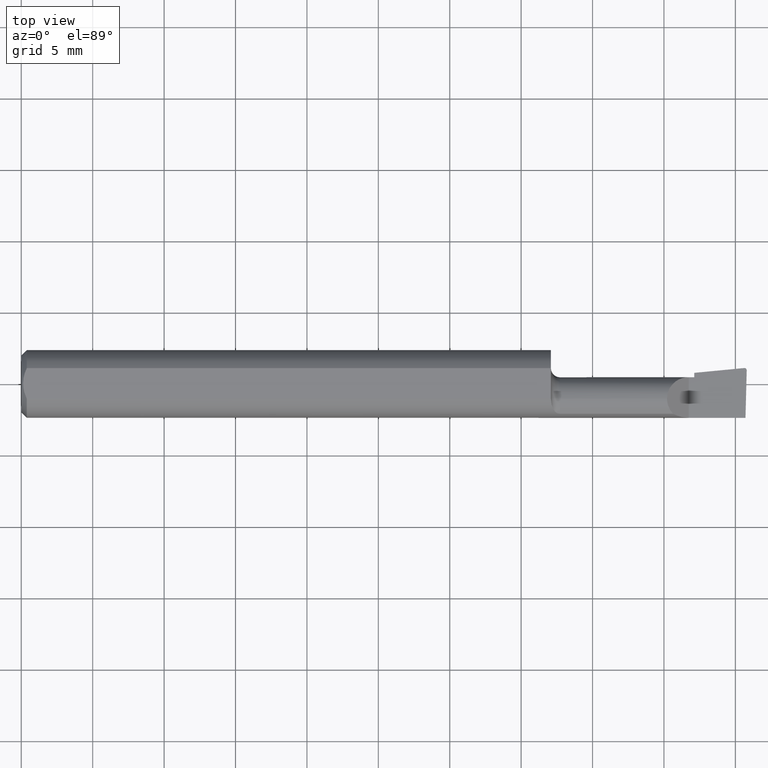
[diagram: clean part render]
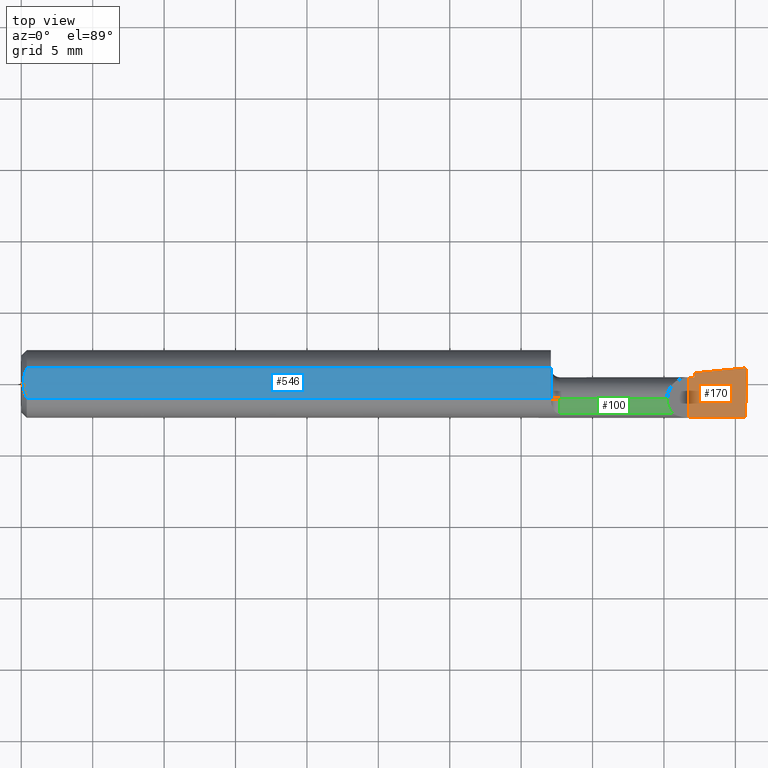
[diagram: same view with three faces highlighted in distinct colors, each labeled with its STEP entity id]
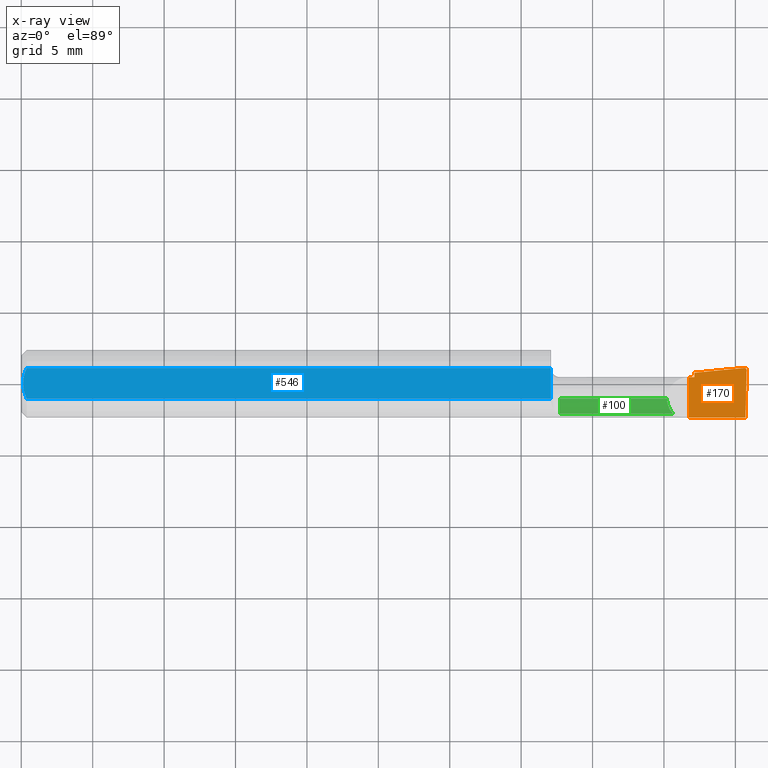
[diagram: x-ray of the same camera — body ghosted, the three highlighted faces saturated]
A machine part, top view with three faces highlighted in distinct colors.
The next image is the same camera in x-ray (body ghosted, the three faces saturated) — at least one of them is partly hidden behind the body in this view.
Their STEP definitions:

[orange] entity #170 — the highlighted planar face has unit normal (-0, 0, -1).
#13 = EDGE_CURVE ( 'NONE', #182, #440, #228, .T. ) ;
#19 = CARTESIAN_POINT ( 'NONE',  ( 5.659797890829555466E-31, -0.09359999999999998876, 1.030335658007946046E-15 ) ) ;
#26 = ORIENTED_EDGE ( 'NONE', *, *, #412, .T. ) ;
#30 = VECTOR ( 'NONE', #584, 39.37007874015748854 ) ;
#45 = CARTESIAN_POINT ( 'NONE',  ( 1.854999999999999982, -0.2500000000000000555, 1.135460985248596835E-17 ) ) ;
#54 = VERTEX_POINT ( 'NONE', #675 ) ;
#58 = CARTESIAN_POINT ( 'NONE',  ( 1.993310817358676212, 0.04374616680637213179, -6.832789351565719796E-17 ) ) ;
#68 = ORIENTED_EDGE ( 'NONE', *, *, #155, .F. ) ;
#70 = DIRECTION ( 'NONE',  ( -5.493159289247764363E-16, 0.0000000000000000000, -1.000000000000000000 ) ) ;
#72 = DIRECTION ( 'NONE',  ( 0.9953961983671787417, 0.09584575252022466130, -5.467869873542577569E-16 ) ) ;
#140 = CARTESIAN_POINT ( 'NONE',  ( 1.999806390372779408, 0.03700634663142104291, -6.825079363098308080E-17 ) ) ;
#155 = EDGE_CURVE ( 'NONE', #440, #277, #707, .T. ) ;
#159 =( BOUNDED_CURVE ( )  B_SPLINE_CURVE ( 3, ( #353, #58, #176, #165 ),
 .UNSPECIFIED., .F., .T. ) 
 B_SPLINE_CURVE_WITH_KNOTS ( ( 4, 4 ),
 ( 3.511516179717707686, 3.604018710826265792 ),
 .UNSPECIFIED. ) 
 CURVE ( )  GEOMETRIC_REPRESENTATION_ITEM ( )  RATIONAL_B_SPLINE_CURVE ( ( 1.000000000000000000, 0.9992870672494014173, 0.9992870672494014173, 1.000000000000000000 ) ) 
 REPRESENTATION_ITEM ( '' )  );
#165 = CARTESIAN_POINT ( 'NONE',  ( 1.992906680581892465, 0.04371699102466924253, -6.439972649628884200E-17 ) ) ;
#170 = ADVANCED_FACE ( 'NONE', ( #403 ), #555, .F. ) ;
#176 = CARTESIAN_POINT ( 'NONE',  ( 1.993108609909222784, 0.04373643460740115479, -6.821681774272507613E-17 ) ) ;
#182 = VERTEX_POINT ( 'NONE', #441 ) ;
#202 =( BOUNDED_CURVE ( )  B_SPLINE_CURVE ( 3, ( #350, #244, #610, #279 ),
 .UNSPECIFIED., .F., .T. ) 
 B_SPLINE_CURVE_WITH_KNOTS ( ( 4, 4 ),
 ( 1.953092279228458406, 3.511516179717707686 ),
 .UNSPECIFIED. ) 
 CURVE ( )  GEOMETRIC_REPRESENTATION_ITEM ( )  RATIONAL_B_SPLINE_CURVE ( ( 1.000000000000000000, 0.8076450242550430314, 0.8076450242550430314, 1.000000000000000000 ) ) 
 REPRESENTATION_ITEM ( '' )  );
#213 = EDGE_LOOP ( 'NONE', ( #26, #454, #380, #559, #514, #667, #68, #402 ) ) ;
#219 = CARTESIAN_POINT ( 'NONE',  ( 1.840000000000000080, -0.2500000000000000555, 1.959434878635762025E-17 ) ) ;
#228 = LINE ( 'NONE', #19, #364 ) ;
#240 = CARTESIAN_POINT ( 'NONE',  ( 1.840000000000000080, -0.09360000000000005815, 1.959434878635762025E-17 ) ) ;
#244 = CARTESIAN_POINT ( 'NONE',  ( 1.999910038027503001, 0.04096449087509793086, -7.195295054753363913E-17 ) ) ;
#247 = EDGE_CURVE ( 'NONE', #334, #54, #159, .T. ) ;
#262 = EDGE_CURVE ( 'NONE', #427, #433, #547, .T. ) ;
#277 = VERTEX_POINT ( 'NONE', #341 ) ;
#279 = CARTESIAN_POINT ( 'NONE',  ( 1.993512870449313912, 0.04374616680637214566, -7.256471233170699482E-17 ) ) ;
#283 = CARTESIAN_POINT ( 'NONE',  ( 1.854999999999999982, 0.01840000000000001010, 1.030335658007946637E-15 ) ) ;
#296 = DIRECTION ( 'NONE',  ( -1.000000000000000000, -0.0000000000000000000, -0.0000000000000000000 ) ) ;
#299 = LINE ( 'NONE', #450, #626 ) ;
#323 = DIRECTION ( 'NONE',  ( -1.000000000000000000, 0.0000000000000000000, 5.493159289247764363E-16 ) ) ;
#334 = VERTEX_POINT ( 'NONE', #526 ) ;
#337 = CARTESIAN_POINT ( 'NONE',  ( 1.854999999999999982, 0.03043808801135919340, 1.030335791302337039E-15 ) ) ;
#341 = CARTESIAN_POINT ( 'NONE',  ( 1.840000000000000080, 0.01839999999999989908, 1.959434878635762025E-17 ) ) ;
#350 = CARTESIAN_POINT ( 'NONE',  ( 1.999806390372779408, 0.03700634663142104291, -6.825079363098308080E-17 ) ) ;
#353 = CARTESIAN_POINT ( 'NONE',  ( 1.993512870449313912, 0.04374616680637214566, -7.256471233170699482E-17 ) ) ;
#364 = VECTOR ( 'NONE', #296, 39.37007874015748143 ) ;
#380 = ORIENTED_EDGE ( 'NONE', *, *, #247, .T. ) ;
#401 = CARTESIAN_POINT ( 'NONE',  ( 5.659797890829555466E-31, 0.01839999999999996499, 1.030335658007946046E-15 ) ) ;
#402 = ORIENTED_EDGE ( 'NONE', *, *, #13, .F. ) ;
#403 = FACE_OUTER_BOUND ( 'NONE', #213, .T. ) ;
#406 = LINE ( 'NONE', #629, #30 ) ;
#409 = DIRECTION ( 'NONE',  ( 0.0000000000000000000, 1.000000000000000000, 0.0000000000000000000 ) ) ;
#412 = EDGE_CURVE ( 'NONE', #182, #525, #406, .T. ) ;
#427 = VERTEX_POINT ( 'NONE', #283 ) ;
#433 = VERTEX_POINT ( 'NONE', #337 ) ;
#440 = VERTEX_POINT ( 'NONE', #240 ) ;
#441 = CARTESIAN_POINT ( 'NONE',  ( 1.996386342823452065, -0.09360000000000009979, -6.634435288474567089E-17 ) ) ;
#450 = CARTESIAN_POINT ( 'NONE',  ( 1.107894390816139163, -0.04150000000000000216, 4.217516215662293437E-16 ) ) ;
#454 = ORIENTED_EDGE ( 'NONE', *, *, #705, .T. ) ;
#465 = EDGE_CURVE ( 'NONE', #433, #54, #299, .T. ) ;
#514 = ORIENTED_EDGE ( 'NONE', *, *, #262, .F. ) ;
#522 = LINE ( 'NONE', #401, #548 ) ;
#524 = CARTESIAN_POINT ( 'NONE',  ( 2.000000000000000000, -0.2500000000000000555, -6.829619984160658046E-17 ) ) ;
#525 = VERTEX_POINT ( 'NONE', #140 ) ;
#526 = CARTESIAN_POINT ( 'NONE',  ( 1.993512870449313912, 0.04374616680637214566, -7.256471233170699482E-17 ) ) ;
#547 = LINE ( 'NONE', #45, #621 ) ;
#548 = VECTOR ( 'NONE', #552, 39.37007874015748143 ) ;
#549 = EDGE_CURVE ( 'NONE', #277, #427, #522, .T. ) ;
#552 = DIRECTION ( 'NONE',  ( 1.000000000000000000, 0.0000000000000000000, 0.0000000000000000000 ) ) ;
#555 = PLANE ( 'NONE',  #653 ) ;
#559 = ORIENTED_EDGE ( 'NONE', *, *, #465, .F. ) ;
#584 = DIRECTION ( 'NONE',  ( 0.02617694830786378504, 0.9996573249755575929, -1.459184416195593542E-17 ) ) ;
#608 = VECTOR ( 'NONE', #684, 39.37007874015748143 ) ;
#610 = CARTESIAN_POINT ( 'NONE',  ( 1.997312560284823402, 0.04374616680637223587, -7.052611464845214313E-17 ) ) ;
#621 = VECTOR ( 'NONE', #409, 39.37007874015748143 ) ;
#626 = VECTOR ( 'NONE', #72, 39.37007874015748143 ) ;
#629 = CARTESIAN_POINT ( 'NONE',  ( 1.992296147241039872, -0.2497982675158734178, -6.406435080701882457E-17 ) ) ;
#653 = AXIS2_PLACEMENT_3D ( 'NONE', #524, #70, #323 ) ;
#667 = ORIENTED_EDGE ( 'NONE', *, *, #549, .F. ) ;
#675 = CARTESIAN_POINT ( 'NONE',  ( 1.992906680581892465, 0.04371699102466924253, -6.439972649628884200E-17 ) ) ;
#684 = DIRECTION ( 'NONE',  ( -0.0000000000000000000, 1.000000000000000000, -0.0000000000000000000 ) ) ;
#705 = EDGE_CURVE ( 'NONE', #525, #334, #202, .T. ) ;
#707 = LINE ( 'NONE', #219, #608 ) ;

[blue] entity #546 — the highlighted planar face has unit normal (0, -0, -1).
#3 = CARTESIAN_POINT ( 'NONE',  ( 0.005000000000000236026, 1.025183009042025117E-17, 0.08360000000000000764 ) ) ;
#14 = CARTESIAN_POINT ( 'NONE',  ( 0.005000000000000228220, -0.007328888879231052964, 0.08360000000000000764 ) ) ;
#22 = CARTESIAN_POINT ( 'NONE',  ( 0.01206089165507025739, -0.03555991978469312531, 0.08360000000000000764 ) ) ;
#28 = VERTEX_POINT ( 'NONE', #280 ) ;
#50 = CARTESIAN_POINT ( 'NONE',  ( 0.005000000000000223883, 0.007308422719211823959, 0.08360000000000000764 ) ) ;
#59 = CARTESIAN_POINT ( 'NONE',  ( 1.460033804492674392, -0.04179756391332130339, 0.08360000000000000764 ) ) ;
#60 = ORIENTED_EDGE ( 'NONE', *, *, #429, .F. ) ;
#62 = CARTESIAN_POINT ( 'NONE',  ( 0.005000000000000236026, 1.025183009042025117E-17, 0.08360000000000000764 ) ) ;
#69 = CARTESIAN_POINT ( 'NONE',  ( 0.01203648650249650523, 0.03550565407121123590, 0.08360000000000000764 ) ) ;
#71 = CARTESIAN_POINT ( 'NONE',  ( 0.009492654797564337166, 0.02859466010166625619, 0.08359999999999997988 ) ) ;
#77 = CARTESIAN_POINT ( 'NONE',  ( 0.01499999999999999598, 0.04209513035969837669, 0.08360000000000000764 ) ) ;
#101 = CARTESIAN_POINT ( 'NONE',  ( 1.460033822879743592, -0.04149999999999999523, 0.08360000000000000764 ) ) ;
#113 = VERTEX_POINT ( 'NONE', #263 ) ;
#118 = VECTOR ( 'NONE', #650, 39.37007874015748143 ) ;
#120 = VECTOR ( 'NONE', #562, 39.37007874015748143 ) ;
#135 = VERTEX_POINT ( 'NONE', #3 ) ;
#168 = DIRECTION ( 'NONE',  ( 0.0000000000000000000, -1.189000693621284344E-16, -1.000000000000000000 ) ) ;
#174 = PLANE ( 'NONE',  #453 ) ;
#229 = DIRECTION ( 'NONE',  ( -1.000000000000000000, -0.0000000000000000000, -0.0000000000000000000 ) ) ;
#235 = ORIENTED_EDGE ( 'NONE', *, *, #428, .F. ) ;
#239 = VERTEX_POINT ( 'NONE', #77 ) ;
#242 = B_SPLINE_CURVE_WITH_KNOTS ( 'NONE', 3,
 ( #101, #394, #59, #377, #328 ),
 .UNSPECIFIED., .F., .F.,
 ( 4, 1, 4 ),
 ( 0.001137327269498854482, 0.001144877036798491645, 0.001152426804098129025 ),
 .UNSPECIFIED. ) ;
#255 = EDGE_CURVE ( 'NONE', #135, #239, #305, .T. ) ;
#259 = ORIENTED_EDGE ( 'NONE', *, *, #255, .F. ) ;
#263 = CARTESIAN_POINT ( 'NONE',  ( 1.460033822879743592, -0.04149999999999999523, 0.08360000000000000764 ) ) ;
#264 = CARTESIAN_POINT ( 'NONE',  ( 1.459999999999999742, 0.1436000000000000332, 0.08359999999999999376 ) ) ;
#267 = CARTESIAN_POINT ( 'NONE',  ( 0.0000000000000000000, 0.04209513035969837669, 0.08360000000000000764 ) ) ;
#269 = CARTESIAN_POINT ( 'NONE',  ( 1.459999999999999964, -0.02916612216505919120, 0.08360000000000000764 ) ) ;
#278 = EDGE_CURVE ( 'NONE', #474, #135, #690, .T. ) ;
#280 = CARTESIAN_POINT ( 'NONE',  ( 1.459999999999999742, -0.02669966216601827105, 0.08360000000000000764 ) ) ;
#287 = EDGE_LOOP ( 'NONE', ( #235, #691, #400, #259, #553, #60, #489 ) ) ;
#305 = B_SPLINE_CURVE_WITH_KNOTS ( 'NONE', 3,
 ( #360, #50, #517, #71, #69, #520 ),
 .UNSPECIFIED., .F., .F.,
 ( 4, 2, 4 ),
 ( 0.006881281100865560205, 0.007427683811376459971, 0.007974086521887359738 ),
 .UNSPECIFIED. ) ;
#307 = EDGE_CURVE ( 'NONE', #239, #363, #589, .T. ) ;
#326 = CARTESIAN_POINT ( 'NONE',  ( 1.460027419345086841, -0.03656676420729535609, 0.08359999999999997988 ) ) ;
#328 = CARTESIAN_POINT ( 'NONE',  ( 1.460033712670300021, -0.04209513035969835587, 0.08360000000000000764 ) ) ;
#331 = CARTESIAN_POINT ( 'NONE',  ( 1.460010473476444526, -0.03163306423249834243, 0.08360000000000000764 ) ) ;
#358 = VECTOR ( 'NONE', #229, 39.37007874015748143 ) ;
#360 = CARTESIAN_POINT ( 'NONE',  ( 0.005000000000000236026, 1.025183009042025117E-17, 0.08360000000000000764 ) ) ;
#363 = VERTEX_POINT ( 'NONE', #704 ) ;
#365 = LINE ( 'NONE', #264, #118 ) ;
#377 = CARTESIAN_POINT ( 'NONE',  ( 1.460033749376515422, -0.04199594133387063444, 0.08360000000000003539 ) ) ;
#383 = CARTESIAN_POINT ( 'NONE',  ( 0.0000000000000000000, -0.04209513035969835587, 0.08360000000000000764 ) ) ;
#386 = FACE_OUTER_BOUND ( 'NONE', #287, .T. ) ;
#391 = CARTESIAN_POINT ( 'NONE',  ( 1.460033822879743592, -0.04149999999999999523, 0.08360000000000000764 ) ) ;
#393 = CARTESIAN_POINT ( 'NONE',  ( 1.460033822879743814, -0.03903342675892660513, 0.08360000000000000764 ) ) ;
#394 = CARTESIAN_POINT ( 'NONE',  ( 1.460033822879743370, -0.04159918775969437960, 0.08360000000000000764 ) ) ;
#396 = CARTESIAN_POINT ( 'NONE',  ( 2.000000000000000000, 0.1436000000000000332, 0.08359999999999999376 ) ) ;
#399 = CARTESIAN_POINT ( 'NONE',  ( 0.01499999999999999944, -0.04209513035969835587, 0.08360000000000000764 ) ) ;
#400 = ORIENTED_EDGE ( 'NONE', *, *, #307, .F. ) ;
#428 = EDGE_CURVE ( 'NONE', #28, #113, #452, .T. ) ;
#429 = EDGE_CURVE ( 'NONE', #543, #474, #709, .T. ) ;
#452 = B_SPLINE_CURVE_WITH_KNOTS ( 'NONE', 3,
 ( #730, #269, #331, #326, #393, #391 ),
 .UNSPECIFIED., .F., .F.,
 ( 4, 2, 4 ),
 ( 0.0007618363005527832924, 0.0009495817850258188872, 0.001137327269498854482 ),
 .UNSPECIFIED. ) ;
#453 = AXIS2_PLACEMENT_3D ( 'NONE', #396, #168, #623 ) ;
#474 = VERTEX_POINT ( 'NONE', #515 ) ;
#475 = EDGE_CURVE ( 'NONE', #363, #28, #365, .T. ) ;
#489 = ORIENTED_EDGE ( 'NONE', *, *, #583, .F. ) ;
#493 = CARTESIAN_POINT ( 'NONE',  ( 0.009539353699420832430, -0.02875682547511371895, 0.08360000000000000764 ) ) ;
#515 = CARTESIAN_POINT ( 'NONE',  ( 0.01499999999999999944, -0.04209513035969835587, 0.08360000000000000764 ) ) ;
#517 = CARTESIAN_POINT ( 'NONE',  ( 0.005981829149300850468, 0.01454044632356567279, 0.08360000000000000764 ) ) ;
#520 = CARTESIAN_POINT ( 'NONE',  ( 0.01499999999999999598, 0.04209513035969837669, 0.08360000000000000764 ) ) ;
#523 = CARTESIAN_POINT ( 'NONE',  ( 0.005975039161239525769, -0.01453776427033148279, 0.08359999999999997988 ) ) ;
#543 = VERTEX_POINT ( 'NONE', #642 ) ;
#546 = ADVANCED_FACE ( 'NONE', ( #386 ), #174, .F. ) ;
#553 = ORIENTED_EDGE ( 'NONE', *, *, #278, .F. ) ;
#562 = DIRECTION ( 'NONE',  ( 1.000000000000000000, 0.0000000000000000000, 0.0000000000000000000 ) ) ;
#583 = EDGE_CURVE ( 'NONE', #113, #543, #242, .T. ) ;
#589 = LINE ( 'NONE', #267, #120 ) ;
#623 = DIRECTION ( 'NONE',  ( 0.0000000000000000000, 1.000000000000000000, -1.189000693621284344E-16 ) ) ;
#642 = CARTESIAN_POINT ( 'NONE',  ( 1.460033712670300021, -0.04209513035969835587, 0.08360000000000000764 ) ) ;
#650 = DIRECTION ( 'NONE',  ( 0.0000000000000000000, -1.000000000000000000, 1.189000693621284344E-16 ) ) ;
#690 = B_SPLINE_CURVE_WITH_KNOTS ( 'NONE', 3,
 ( #399, #22, #493, #523, #14, #62 ),
 .UNSPECIFIED., .F., .F.,
 ( 4, 2, 4 ),
 ( 0.005785415439423114564, 0.006333348270144337384, 0.006881281100865560205 ),
 .UNSPECIFIED. ) ;
#691 = ORIENTED_EDGE ( 'NONE', *, *, #475, .F. ) ;
#704 = CARTESIAN_POINT ( 'NONE',  ( 1.459999999999999742, 0.04209513035969836975, 0.08360000000000000764 ) ) ;
#709 = LINE ( 'NONE', #383, #358 ) ;
#730 = CARTESIAN_POINT ( 'NONE',  ( 1.459999999999999742, -0.02669966216601827105, 0.08360000000000000764 ) ) ;

[green] entity #100 — the highlighted cylindrical surface (edge-blend (fillet) strip) has radius 1.5215 mm, axis along (-1, -0, -0).
#48 = DIRECTION ( 'NONE',  ( 1.000000000000000000, 0.0000000000000000000, 0.0000000000000000000 ) ) ;
#79 = EDGE_CURVE ( 'NONE', #565, #226, #490, .T. ) ;
#100 = ADVANCED_FACE ( 'NONE', ( #366 ), #311, .T. ) ;
#104 = DIRECTION ( 'NONE',  ( -1.000000000000000000, -0.0000000000000000000, -0.0000000000000000000 ) ) ;
#105 = ORIENTED_EDGE ( 'NONE', *, *, #169, .F. ) ;
#116 =( BOUNDED_CURVE ( )  B_SPLINE_CURVE ( 3, ( #197, #699, #640, #682 ),
 .UNSPECIFIED., .F., .T. ) 
 B_SPLINE_CURVE_WITH_KNOTS ( ( 4, 4 ),
 ( 5.516060229395658432, 6.283185307179586232 ),
 .UNSPECIFIED. ) 
 CURVE ( )  GEOMETRIC_REPRESENTATION_ITEM ( )  RATIONAL_B_SPLINE_CURVE ( ( 1.000000000000000000, 0.9515582177473689285, 0.9515582177473689285, 1.000000000000000000 ) ) 
 REPRESENTATION_ITEM ( '' )  );
#117 = CARTESIAN_POINT ( 'NONE',  ( 1.669999999999999929, -0.08307469879518077083, 0.04312255117789289688 ) ) ;
#143 = VECTOR ( 'NONE', #177, 39.37007874015748143 ) ;
#153 = VERTEX_POINT ( 'NONE', #726 ) ;
#167 = DIRECTION ( 'NONE',  ( 0.0000000000000000000, 0.0000000000000000000, 1.000000000000000000 ) ) ;
#169 = EDGE_CURVE ( 'NONE', #617, #226, #185, .T. ) ;
#177 = DIRECTION ( 'NONE',  ( -1.000000000000000000, -0.0000000000000000000, -0.0000000000000000000 ) ) ;
#184 = CARTESIAN_POINT ( 'NONE',  ( 1.484999999999999876, -0.04149999999999999523, 0.05989999999999996022 ) ) ;
#185 = CIRCLE ( 'NONE', #256, 0.05989999999999995328 ) ;
#197 = CARTESIAN_POINT ( 'NONE',  ( 1.796877448822106649, -0.08307469879518074307, 0.04312255117789294545 ) ) ;
#224 = ORIENTED_EDGE ( 'NONE', *, *, #237, .T. ) ;
#226 = VERTEX_POINT ( 'NONE', #184 ) ;
#237 = EDGE_CURVE ( 'NONE', #153, #565, #116, .T. ) ;
#243 = CARTESIAN_POINT ( 'NONE',  ( 1.484999999999999876, -0.04150000000000000216, 0.0000000000000000000 ) ) ;
#256 = AXIS2_PLACEMENT_3D ( 'NONE', #243, #104, #167 ) ;
#289 = DIRECTION ( 'NONE',  ( -1.000000000000000000, -0.0000000000000000000, -0.0000000000000000000 ) ) ;
#304 = EDGE_LOOP ( 'NONE', ( #224, #596, #105, #387 ) ) ;
#311 = CYLINDRICAL_SURFACE ( 'NONE', #314, 0.05989999999999998104 ) ;
#314 = AXIS2_PLACEMENT_3D ( 'NONE', #464, #289, #410 ) ;
#319 = VECTOR ( 'NONE', #48, 39.37007874015748143 ) ;
#366 = FACE_OUTER_BOUND ( 'NONE', #304, .T. ) ;
#387 = ORIENTED_EDGE ( 'NONE', *, *, #510, .T. ) ;
#410 = DIRECTION ( 'NONE',  ( 0.0000000000000000000, 0.0000000000000000000, 1.000000000000000000 ) ) ;
#439 = CARTESIAN_POINT ( 'NONE',  ( 0.0000000000000000000, -0.04150000000000000216, 0.05989999999999998104 ) ) ;
#464 = CARTESIAN_POINT ( 'NONE',  ( 0.0000000000000000000, -0.04150000000000000216, 0.0000000000000000000 ) ) ;
#478 = LINE ( 'NONE', #117, #319 ) ;
#490 = LINE ( 'NONE', #439, #143 ) ;
#510 = EDGE_CURVE ( 'NONE', #617, #153, #478, .T. ) ;
#565 = VERTEX_POINT ( 'NONE', #645 ) ;
#596 = ORIENTED_EDGE ( 'NONE', *, *, #79, .T. ) ;
#617 = VERTEX_POINT ( 'NONE', #727 ) ;
#640 = CARTESIAN_POINT ( 'NONE',  ( 1.780099999999999349, -0.05720488466914004644, 0.05989999999999997410 ) ) ;
#645 = CARTESIAN_POINT ( 'NONE',  ( 1.780099999999999349, -0.04150000000000000216, 0.05989999999999998104 ) ) ;
#682 = CARTESIAN_POINT ( 'NONE',  ( 1.780099999999999349, -0.04150000000000000216, 0.05989999999999998104 ) ) ;
#699 = CARTESIAN_POINT ( 'NONE',  ( 1.785977184218892067, -0.07176861043311233423, 0.05402281578110743054 ) ) ;
#726 = CARTESIAN_POINT ( 'NONE',  ( 1.796877448822106649, -0.08307469879518074307, 0.04312255117789294545 ) ) ;
#727 = CARTESIAN_POINT ( 'NONE',  ( 1.484999999999999876, -0.08307469879518063205, 0.04312255117789300790 ) ) ;